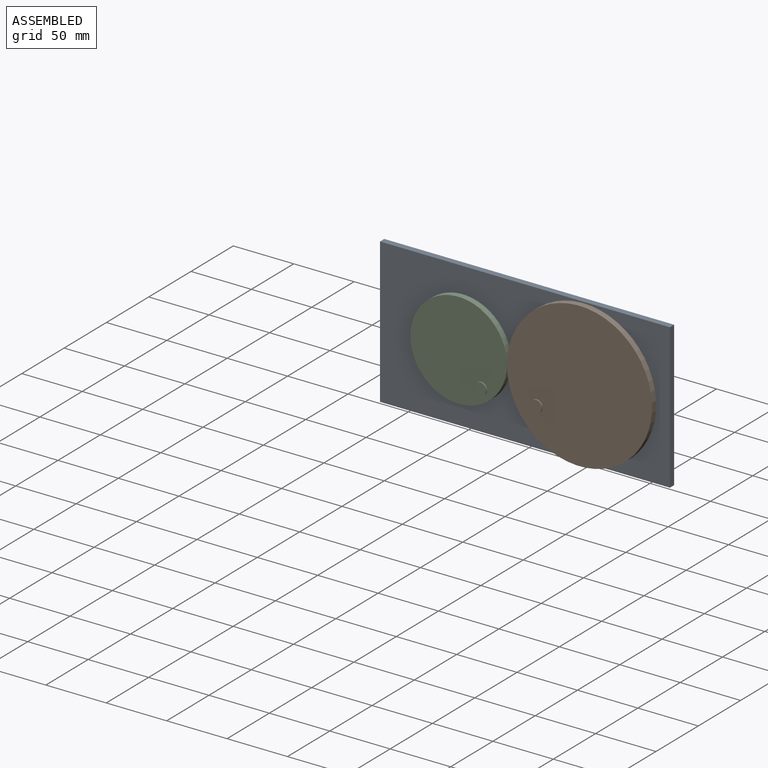
[diagram: assembled view]
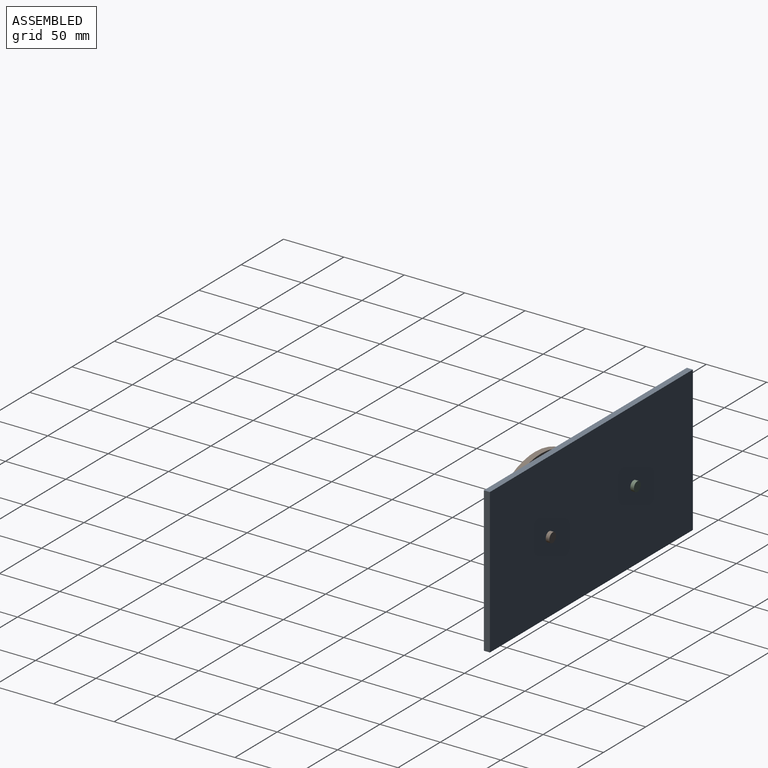
[diagram: assembled view, second angle]
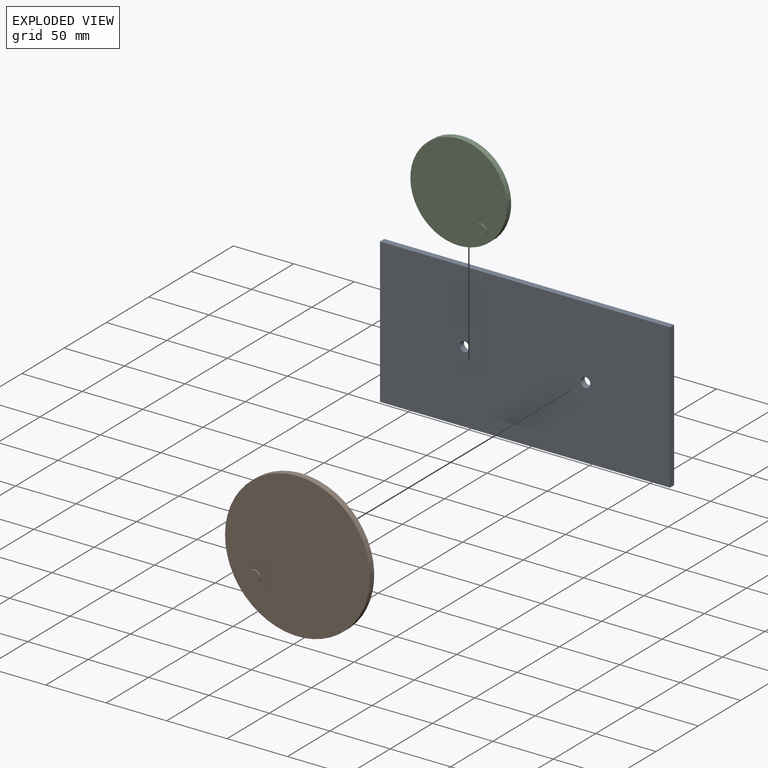
[diagram: exploded view]
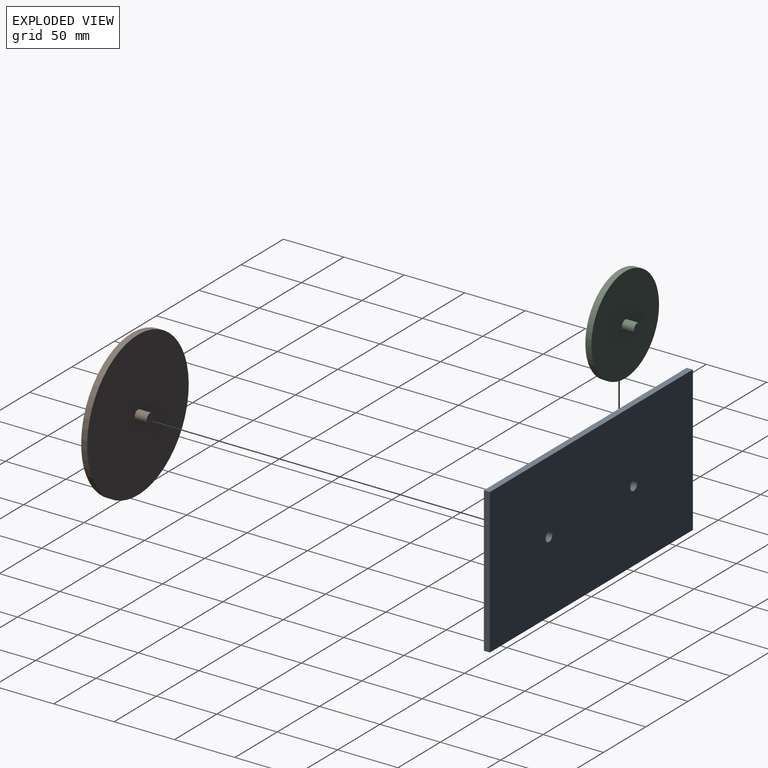
[diagram: exploded view, second angle]
ASSEMBLY  parts=3 mates=2
PART A: 8 faces, bbox 240x5x120 mm
  f0: plane 240x120mm, normal (0,-1,0), area 28699.5mm2, adj f2,f3,f4,f5,f6,f7
  f1: plane 240x120mm, normal (0,1,0), area 28699.5mm2, adj f2,f3,f4,f5,f6,f7
  f2: plane 240x5mm, normal (0,0,-1), area 1200mm2, adj f0,f1,f3,f5
  f3: plane 120x5mm, normal (1,0,0), area 600mm2, adj f0,f1,f2,f4
  f4: plane 240x5mm, normal (0,0,1), area 1200mm2, adj f0,f1,f3,f5
  f5: plane 120x5mm, normal (-1,0,0), area 600mm2, adj f0,f1,f2,f4
  f6: cylinder r=4mm len=8mm, axis (0,-1,0), area 125.7mm2, adj f0,f1
  f7: cylinder r=4mm len=8mm, axis (0,-1,0), area 125.7mm2, adj f0,f1
PART B: 7 faces, bbox 120x16x120 mm
  f0: cylinder r=4mm len=10mm, axis (0,-1,0), area 251.3mm2, adj f1,f4
  f1: plane 8x8mm, normal (0,1,0), area 50.3mm2, adj f0
  f2: plane 120x120mm, normal (0,-1,0), area 11231.2mm2, adj f3,f5
  f3: cylinder r=60mm len=120mm, axis (0,1,0), area 1885mm2, adj f2,f4
  f4: plane 120x120mm, normal (0,1,0), area 11259.5mm2, adj f0,f3
  f5: cylinder r=5mm len=10mm, axis (0,1,0), area 31.4mm2, adj f2,f6
  f6: plane 10x10mm, normal (0,-1,0), area 78.5mm2, adj f5
PART C: 7 faces, bbox 80x16x80 mm
  f0: cylinder r=4mm len=10mm, axis (0,-1,0), area 251.3mm2, adj f1,f4
  f1: plane 8x8mm, normal (0,1,0), area 50.3mm2, adj f0
  f2: cylinder r=40mm len=80mm, axis (0,1,0), area 1256.6mm2, adj f3,f4
  f3: plane 80x80mm, normal (0,-1,0), area 4948mm2, adj f2,f5
  f4: plane 80x80mm, normal (0,1,0), area 4976.3mm2, adj f0,f2
  f5: cylinder r=5mm len=10mm, axis (0,1,0), area 31.4mm2, adj f3,f6
  f6: plane 10x10mm, normal (0,-1,0), area 78.5mm2, adj f5
PLACE A at identity fixed
PLACE B rot(axis=(0,-1,0),34.5deg) t=(8.8,-2,-28.33)mm
PLACE C rot(axis=(0,1,0),51.8deg) t=(-19.05,-2,-39.27)mm
MATE revolute A.f7 <-> C.f2  axis (0,-1,0) through (-50,-5,0)mm
MATE revolute A.f6 <-> B.f3  axis (0,-1,0) through (50,-5,0)mm
